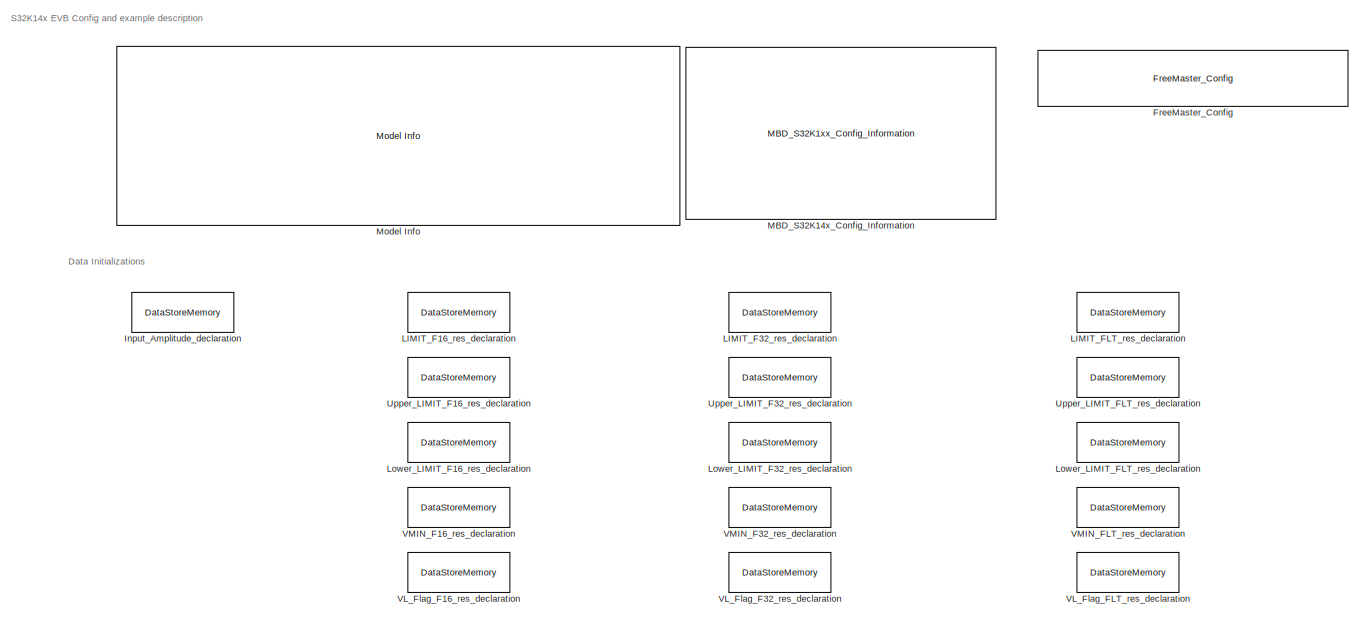
[diagram: root canvas - part 1/7, top center region]
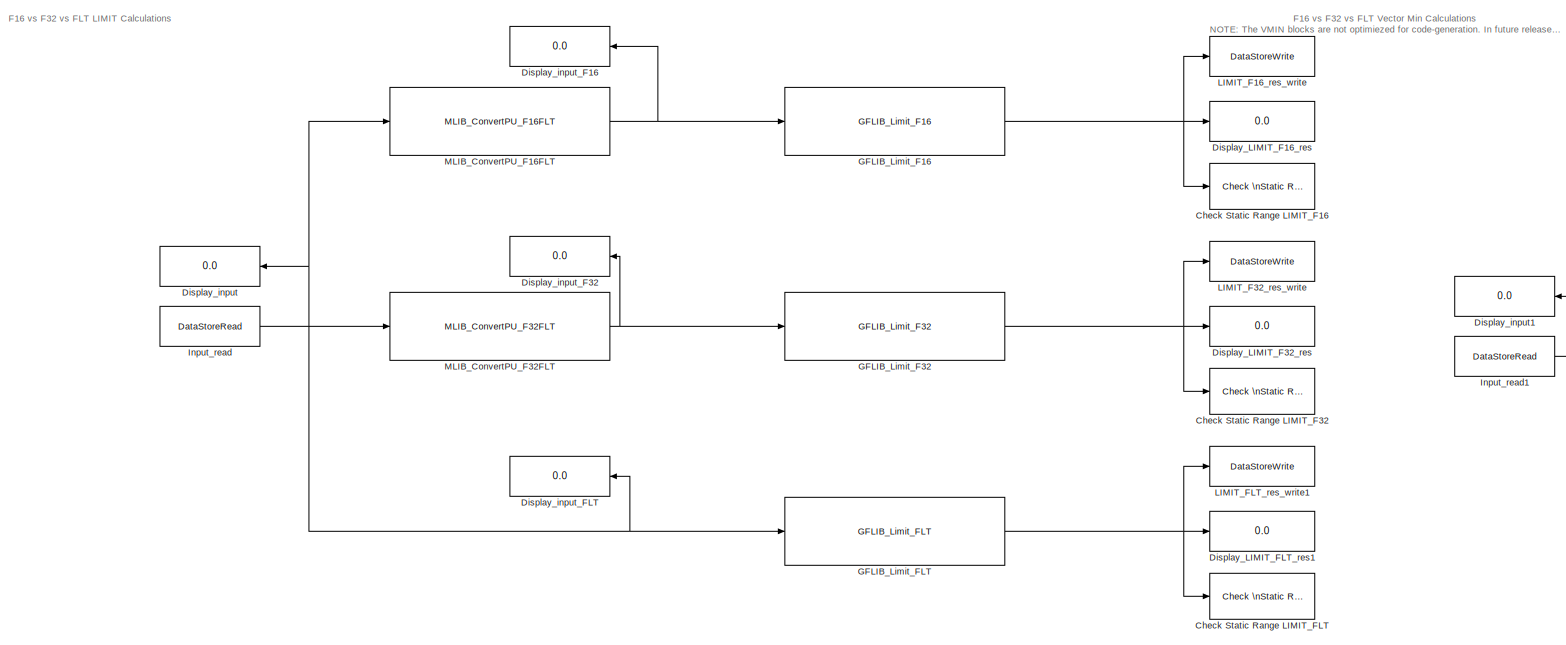
[diagram: root canvas - part 2/7, middle left region]
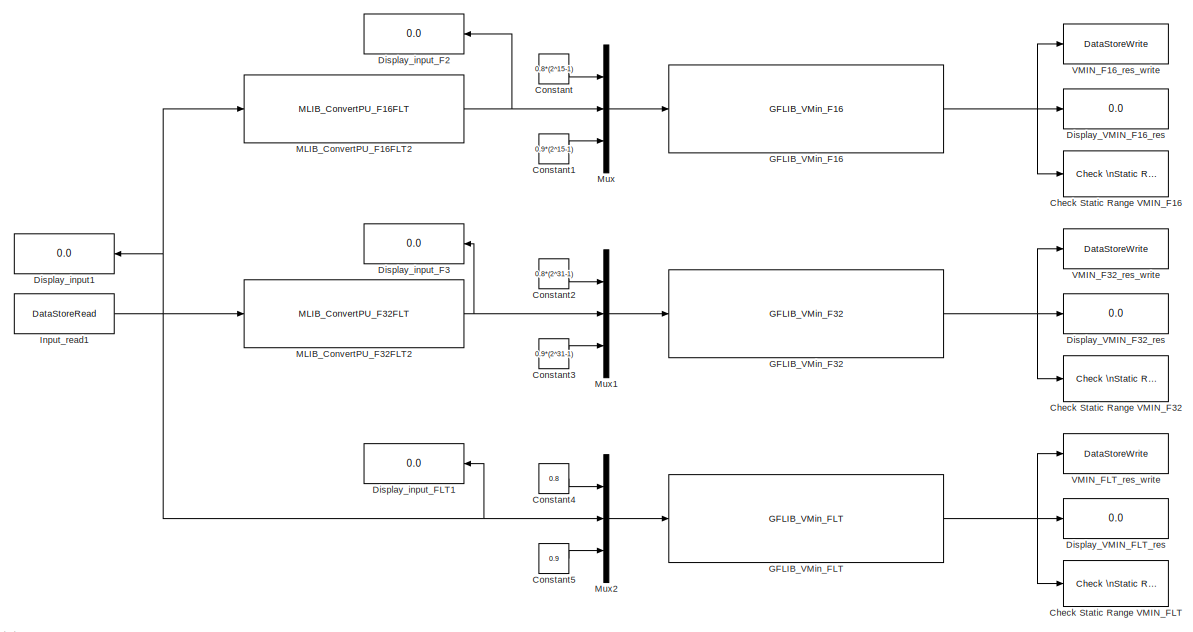
[diagram: root canvas - part 3/7, middle right region]
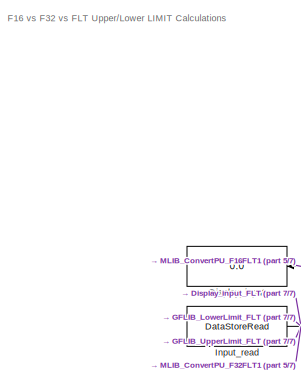
[diagram: root canvas - part 4/7, middle left region]
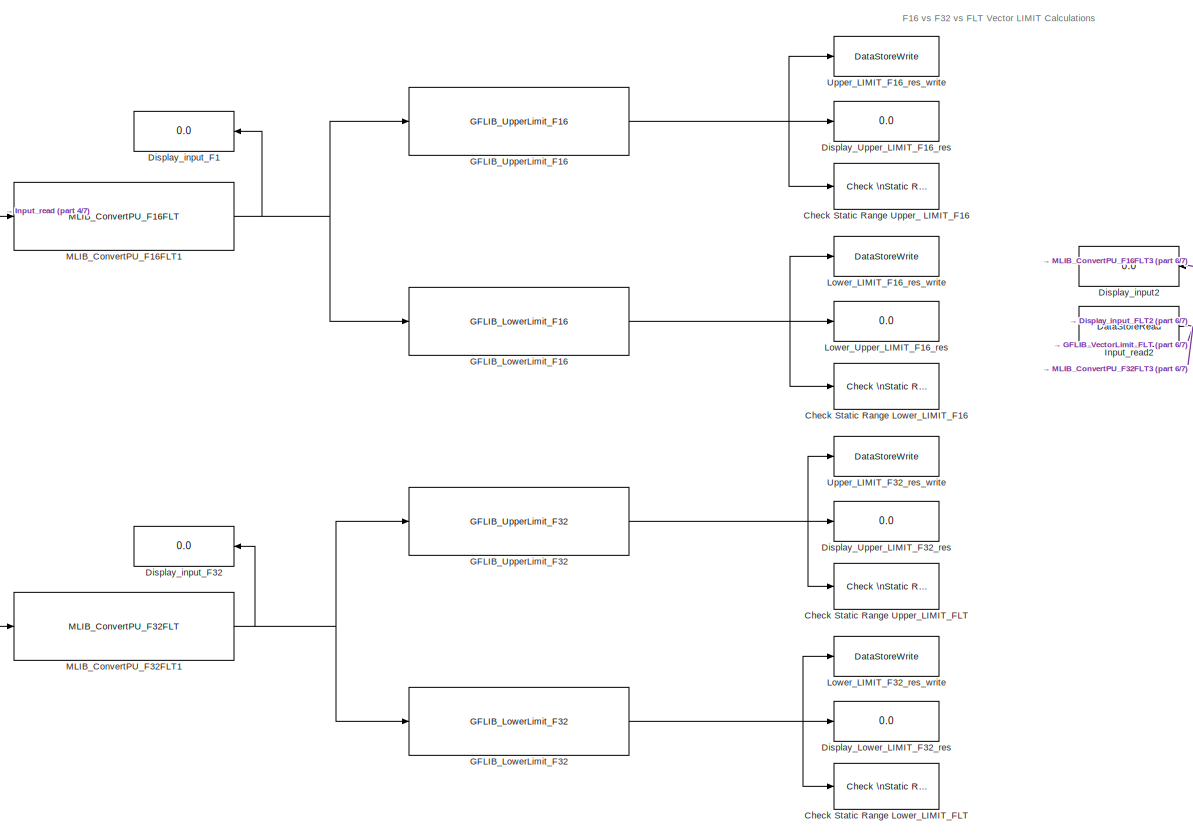
[diagram: root canvas - part 5/7, bottom center region]
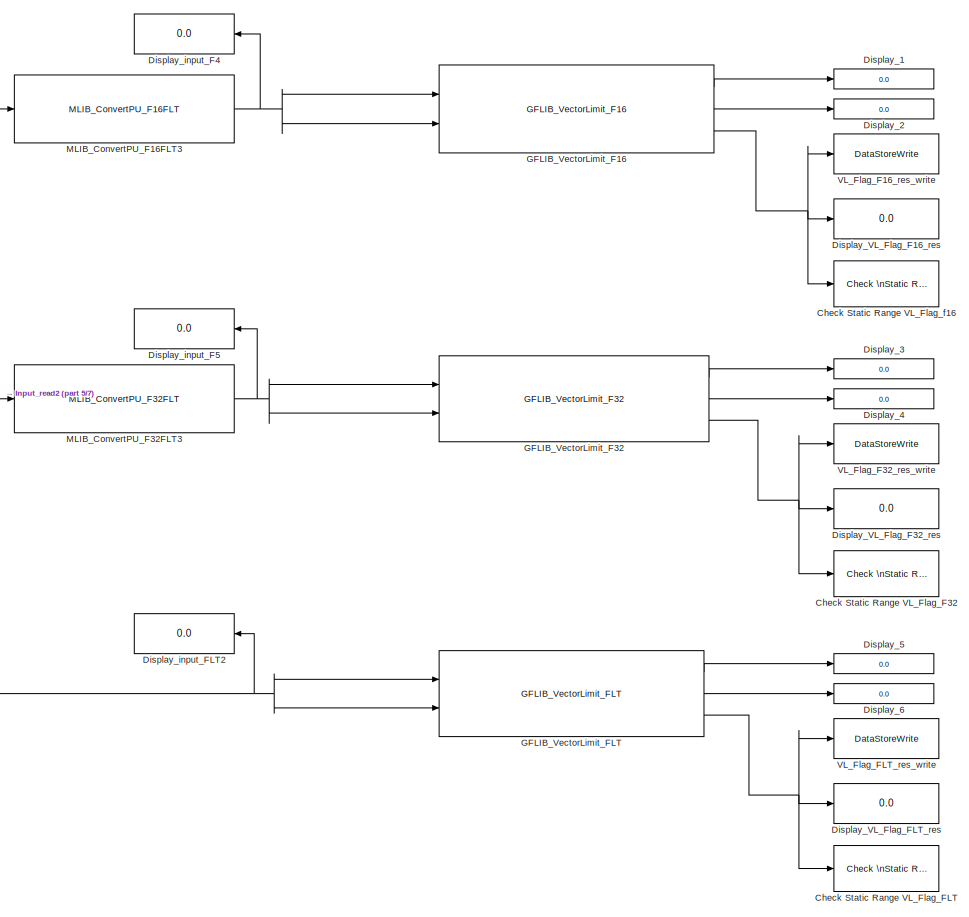
[diagram: root canvas - part 6/7, bottom right region]
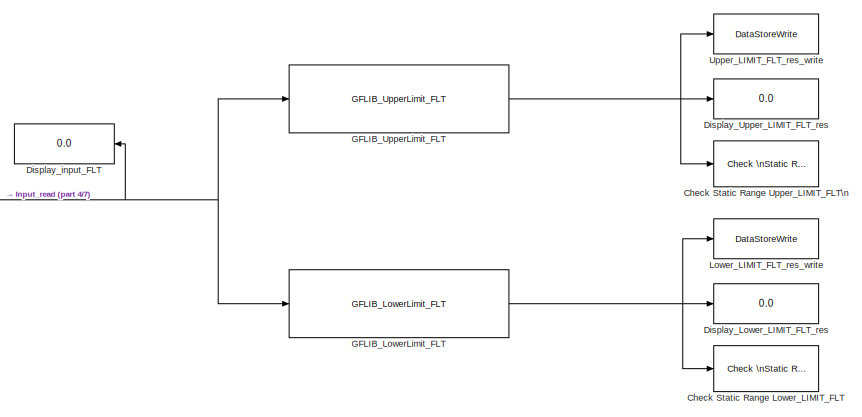
[diagram: root canvas - part 7/7, bottom center region]
MODEL ammclib_gflib_limit_s32k14x
KIND model
CONFIG InitFcn = mbd_s32k_consistency_checks(bdroot(gcs));
BLOCK [Reference] Check Static Range LIMIT_F16   REF=simulink/Model\nVerification/Check \nStatic Range
  Description = -0.5*(2^15-1)-1 <= u <= 0.5*(2^15-1)+1
  Ports = [1]
  SID = 984
  SourceBlock = simulink/Model\nVerification/Check \nStatic Range
  SourceProductBaseCode = SL
  SourceProductName = Simulink
  SourceType = Checks_SRange
  enabled = on
  export = off
  icon = graphic
  max = 0.5*(2^15-1)+1
  max_included = on
  min = -0.5*(2^15-1)-1
  min_included = on
  stopWhenAssertionFail = on
BLOCK [Reference] Check Static Range LIMIT_F32  REF=simulink/Model\nVerification/Check \nStatic Range
  Description = -0.5*(2^31-1)-1 <= u <= 0.5*(2^31-1)+1
  Ports = [1]
  SID = 1001
  SourceBlock = simulink/Model\nVerification/Check \nStatic Range
  SourceProductBaseCode = SL
  SourceProductName = Simulink
  SourceType = Checks_SRange
  enabled = on
  export = off
  icon = graphic
  max = 0.5*(2^31-1)+1
  max_included = on
  min = -0.5*(2^31-1)-1
  min_included = on
  stopWhenAssertionFail = on
BLOCK [Reference] Check Static Range LIMIT_FLT  REF=simulink/Model\nVerification/Check \nStatic Range
  Description = -0.51 <= u <= 0.51
  Ports = [1]
  SID = 1004
  SourceBlock = simulink/Model\nVerification/Check \nStatic Range
  SourceProductBaseCode = SL
  SourceProductName = Simulink
  SourceType = Checks_SRange
  enabled = on
  export = off
  icon = graphic
  max = 0.51
  max_included = on
  min = -0.51
  min_included = on
  stopWhenAssertionFail = on
BLOCK [Reference] Check Static Range Lower_LIMIT_F16  REF=simulink/Model\nVerification/Check \nStatic Range
  Description = -0.5*(2^15-1)-1 <= u <= (2^15-1)
  Ports = [1]
  SID = 1036
  SourceBlock = simulink/Model\nVerification/Check \nStatic Range
  SourceProductBaseCode = SL
  SourceProductName = Simulink
  SourceType = Checks_SRange
  enabled = on
  export = off
  icon = graphic
  max = (2^15-1)
  max_included = on
  min = -0.5*(2^15-1)-1
  min_included = on
  stopWhenAssertionFail = on
BLOCK [Reference] Check Static Range Lower_LIMIT_FLT  REF=simulink/Model\nVerification/Check \nStatic Range
  Description = -0.5*(2^31-1)-1 <= u <= (2^31-1)
  Ports = [1]
  SID = 1041
  SourceBlock = simulink/Model\nVerification/Check \nStatic Range
  SourceProductBaseCode = SL
  SourceProductName = Simulink
  SourceType = Checks_SRange
  enabled = on
  export = off
  icon = graphic
  max = (2^31-1)
  max_included = on
  min = -0.5*(2^31-1)-1
  min_included = on
  stopWhenAssertionFail = on
BLOCK [Reference] Check Static Range Lower_LIMIT_FLT    REF=simulink/Model\nVerification/Check \nStatic Range
  Description = -0.5 <= u <= 1
  Ports = [1]
  SID = 1047
  SourceBlock = simulink/Model\nVerification/Check \nStatic Range
  SourceProductBaseCode = SL
  SourceProductName = Simulink
  SourceType = Checks_SRange
  enabled = on
  export = off
  icon = graphic
  max = 1
  max_included = on
  min = -0.5
  min_included = on
  stopWhenAssertionFail = on
BLOCK [Reference] Check Static Range Upper_ LIMIT_F16   REF=simulink/Model\nVerification/Check \nStatic Range
  Description = -(2^15-1) <= u <= 0.5*(2^15-1)+1
  Ports = [1]
  SID = 1014
  SourceBlock = simulink/Model\nVerification/Check \nStatic Range
  SourceProductBaseCode = SL
  SourceProductName = Simulink
  SourceType = Checks_SRange
  enabled = on
  export = off
  icon = graphic
  max = 0.5*(2^15-1)+1
  max_included = on
  min = -(2^15-1)
  min_included = on
  stopWhenAssertionFail = on
BLOCK [Reference] Check Static Range Upper_LIMIT_FLT  REF=simulink/Model\nVerification/Check \nStatic Range
  Description = -(2^31-1) <= u <= 0.5*(2^31-1)+1
  Ports = [1]
  SID = 1015
  SourceBlock = simulink/Model\nVerification/Check \nStatic Range
  SourceProductBaseCode = SL
  SourceProductName = Simulink
  SourceType = Checks_SRange
  enabled = on
  export = off
  icon = graphic
  max = 0.5*(2^31-1)+1
  max_included = on
  min = -(2^31-1)
  min_included = on
  stopWhenAssertionFail = on
BLOCK [Reference] Check Static Range Upper_LIMIT_FLT\n  REF=simulink/Model\nVerification/Check \nStatic Range
  Description = -1 <= u <= 0.51
  Ports = [1]
  SID = 1016
  SourceBlock = simulink/Model\nVerification/Check \nStatic Range
  SourceProductBaseCode = SL
  SourceProductName = Simulink
  SourceType = Checks_SRange
  enabled = on
  export = off
  icon = graphic
  max = 0.51
  max_included = on
  min = -1
  min_included = on
  stopWhenAssertionFail = on
BLOCK [Reference] Check Static Range VL_Flag_F32  REF=simulink/Model\nVerification/Check \nStatic Range
  Description = 0 <= u <= 1
  Ports = [1]
  SID = 1149
  SourceBlock = simulink/Model\nVerification/Check \nStatic Range
  SourceProductBaseCode = SL
  SourceProductName = Simulink
  SourceType = Checks_SRange
  enabled = on
  export = off
  icon = graphic
  max = 1
  max_included = on
  min = 0
  min_included = on
  stopWhenAssertionFail = on
BLOCK [Reference] Check Static Range VL_Flag_FLT  REF=simulink/Model\nVerification/Check \nStatic Range
  Description = 0 <= u <= 1
  Ports = [1]
  SID = 1155
  SourceBlock = simulink/Model\nVerification/Check \nStatic Range
  SourceProductBaseCode = SL
  SourceProductName = Simulink
  SourceType = Checks_SRange
  enabled = on
  export = off
  icon = graphic
  max = 1
  max_included = on
  min = 0
  min_included = on
  stopWhenAssertionFail = on
BLOCK [Reference] Check Static Range VL_Flag_f16  REF=simulink/Model\nVerification/Check \nStatic Range
  Description = 0 <= u <= 1
  Ports = [1]
  SID = 1145
  SourceBlock = simulink/Model\nVerification/Check \nStatic Range
  SourceProductBaseCode = SL
  SourceProductName = Simulink
  SourceType = Checks_SRange
  enabled = on
  export = off
  icon = graphic
  max = 1
  max_included = on
  min = 0
  min_included = on
  stopWhenAssertionFail = on
BLOCK [Reference] Check Static Range VMIN_F16  REF=simulink/Model\nVerification/Check \nStatic Range
  Description = 0 <= u <= 2
  Ports = [1]
  SID = 1050
  SourceBlock = simulink/Model\nVerification/Check \nStatic Range
  SourceProductBaseCode = SL
  SourceProductName = Simulink
  SourceType = Checks_SRange
  enabled = on
  export = off
  icon = graphic
  max = 2
  max_included = on
  min = 0
  min_included = on
  stopWhenAssertionFail = on
BLOCK [Reference] Check Static Range VMIN_F32  REF=simulink/Model\nVerification/Check \nStatic Range
  Description = 0 <= u <= 2
  Ports = [1]
  SID = 1051
  SourceBlock = simulink/Model\nVerification/Check \nStatic Range
  SourceProductBaseCode = SL
  SourceProductName = Simulink
  SourceType = Checks_SRange
  enabled = on
  export = off
  icon = graphic
  max = 2
  max_included = on
  min = 0
  min_included = on
  stopWhenAssertionFail = on
BLOCK [Reference] Check Static Range VMIN_FLT  REF=simulink/Model\nVerification/Check \nStatic Range
  Description = 0 <= u <= 2
  Ports = [1]
  SID = 1052
  SourceBlock = simulink/Model\nVerification/Check \nStatic Range
  SourceProductBaseCode = SL
  SourceProductName = Simulink
  SourceType = Checks_SRange
  enabled = on
  export = off
  icon = graphic
  max = 2
  max_included = on
  min = 0
  min_included = on
  stopWhenAssertionFail = on
BLOCK [Constant] Constant
  OutDataTypeStr = int16
  SID = 1074
  Value = 0.8*(2^15-1)
BLOCK [Constant] Constant1
  OutDataTypeStr = int16
  SID = 1075
  Value = 0.9*(2^15-1)
BLOCK [Constant] Constant2
  OutDataTypeStr = int32
  SID = 1079
  Value = 0.8*(2^31-1)
BLOCK [Constant] Constant3
  OutDataTypeStr = int32
  SID = 1080
  Value = 0.9*(2^31-1)
BLOCK [Constant] Constant4
  OutDataTypeStr = single
  SID = 1083
  Value = 0.8
BLOCK [Constant] Constant5
  OutDataTypeStr = single
  SID = 1084
  Value = 0.9
BLOCK [Display] Display_1
  Decimation = 1
  Format = long
  Ports = [1]
  SID = 1144
BLOCK [Display] Display_2
  Decimation = 1
  Format = long
  Ports = [1]
  SID = 1139
BLOCK [Display] Display_3
  Decimation = 1
  Format = long
  Ports = [1]
  SID = 1150
BLOCK [Display] Display_4
  Decimation = 1
  Format = long
  Ports = [1]
  SID = 1151
BLOCK [Display] Display_5
  Decimation = 1
  Format = long
  Ports = [1]
  SID = 1156
BLOCK [Display] Display_6
  Decimation = 1
  Format = long
  Ports = [1]
  SID = 1157
BLOCK [Display] Display_LIMIT_F16_res
  Decimation = 1
  Format = long
  Ports = [1]
  SID = 987
BLOCK [Display] Display_LIMIT_F32_res
  Decimation = 1
  Format = long
  Ports = [1]
  SID = 1002
BLOCK [Display] Display_LIMIT_FLT_res1
  Decimation = 1
  Format = long
  Ports = [1]
  SID = 1005
BLOCK [Display] Display_Lower_LIMIT_F32_res
  Decimation = 1
  Format = long
  Ports = [1]
  SID = 1042
BLOCK [Display] Display_Lower_LIMIT_FLT_res
  Decimation = 1
  Format = long
  Ports = [1]
  SID = 1048
BLOCK [Display] Display_Upper_LIMIT_F16_res
  Decimation = 1
  Format = long
  Ports = [1]
  SID = 1017
BLOCK [Display] Display_Upper_LIMIT_F32_res
  Decimation = 1
  Format = long
  Ports = [1]
  SID = 1018
BLOCK [Display] Display_Upper_LIMIT_FLT_res
  Decimation = 1
  Format = long
  Ports = [1]
  SID = 1019
BLOCK [Display] Display_VL_Flag_F16_res
  Decimation = 1
  Format = long
  Ports = [1]
  SID = 1146
BLOCK [Display] Display_VL_Flag_F32_res
  Decimation = 1
  Format = long
  Ports = [1]
  SID = 1152
BLOCK [Display] Display_VL_Flag_FLT_res
  Decimation = 1
  Format = long
  Ports = [1]
  SID = 1158
BLOCK [Display] Display_VMIN_F16_res
  Decimation = 1
  Format = long
  Ports = [1]
  SID = 1053
BLOCK [Display] Display_VMIN_F32_res
  Decimation = 1
  Format = long
  Ports = [1]
  SID = 1054
BLOCK [Display] Display_VMIN_FLT_res
  Decimation = 1
  Format = long
  Ports = [1]
  SID = 1055
BLOCK [Display] Display_input
  Decimation = 1
  Format = long
  Ports = [1]
  SID = 986
BLOCK [Display] Display_input  
  Decimation = 1
  Format = long
  Ports = [1]
  SID = 1020
BLOCK [Display] Display_input1
  Decimation = 1
  Format = long
  Ports = [1]
  SID = 1056
BLOCK [Display] Display_input2
  Decimation = 1
  Format = long
  Ports = [1]
  SID = 1123
BLOCK [Display] Display_input_F1
  Decimation = 1
  Format = long
  Ports = [1]
  SID = 1021
BLOCK [Display] Display_input_F16
  Decimation = 1
  Format = long
  Ports = [1]
  SID = 995
BLOCK [Display] Display_input_F2
  Decimation = 1
  Format = long
  Ports = [1]
  SID = 1057
BLOCK [Display] Display_input_F3
  Decimation = 1
  Format = long
  Ports = [1]
  SID = 1058
BLOCK [Display] Display_input_F32
  Decimation = 1
  Format = long
  Ports = [1]
  SID = 997
BLOCK [Display] Display_input_F32  
  Decimation = 1
  Format = long
  Ports = [1]
  SID = 1022
BLOCK [Display] Display_input_F4
  Decimation = 1
  Format = long
  Ports = [1]
  SID = 1124
BLOCK [Display] Display_input_F5
  Decimation = 1
  Format = long
  Ports = [1]
  SID = 1125
BLOCK [Display] Display_input_FLT
  Decimation = 1
  Format = long
  Ports = [1]
  SID = 1007
BLOCK [Display] Display_input_FLT  
  Decimation = 1
  Format = long
  Ports = [1]
  SID = 1023
BLOCK [Display] Display_input_FLT1
  Decimation = 1
  Format = long
  Ports = [1]
  SID = 1059
BLOCK [Display] Display_input_FLT2
  Decimation = 1
  Format = long
  Ports = [1]
  SID = 1126
BLOCK [Reference] FreeMaster_Config  REF=mbd_s32k1xx_ec_toolbox/Utility Blocks/FreeMaster_Config
  Ports = []
  SID = 564
  SourceBlock = mbd_s32k1xx_ec_toolbox/Utility Blocks/FreeMaster_Config
  SourceType = fm_s32k_config
  baudrate = 115200
  comm_buffer_size = 255
  comm_buffer_size_auto = on
  comm_rqueue_size = 32
  comm_rqueue_size_default = on
  interface = LPUART1
  isr_prio = 1
  max_rec_vars = 8
  max_scope_vars = 8
  mode = Long Interrupt
  rec_buff_size = 1024
  rec_timebase = 0
  rec_timebase_unit = milliseconds
  rxd = PTC6: [LPUART1_RX | Receive]
  show_adv_opts = on
  txd = PTC7: [LPUART1_TX | Transmit]
  use_recorder = off
  use_scope = on
BLOCK [Reference] GFLIB_Limit_F16  REF=ammclib_bam_s32k14x/GFLIB/bam_f16/GFLIB_Limit_F16  (lib defined in mdl_f341c9dd7fd9)
  Ports = [1, 1]
  SID = 994
  SourceBlock = ammclib_bam_s32k14x/GFLIB/bam_f16/GFLIB_Limit_F16
  SourceType = GFLIB_Limit
  f16LowerLim = -0.5*(2^15-1)
  f16UpperLimit = 0.5*(2^15-1)
BLOCK [Reference] GFLIB_Limit_F32  REF=ammclib_bam_s32k14x/GFLIB/bam_f32/GFLIB_Limit_F32  (lib defined in mdl_f341c9dd7fd9)
  Ports = [1, 1]
  SID = 998
  SourceBlock = ammclib_bam_s32k14x/GFLIB/bam_f32/GFLIB_Limit_F32
  SourceType = GFLIB_Limit
  f32LowerLim = -0.5*(2^31-1)
  f32UpperLimit = 0.5*(2^31-1)
BLOCK [Reference] GFLIB_Limit_FLT  REF=ammclib_bam_s32k14x/GFLIB/bam_flt/GFLIB_Limit_FLT  (lib defined in mdl_f341c9dd7fd9)
  Ports = [1, 1]
  SID = 1003
  SourceBlock = ammclib_bam_s32k14x/GFLIB/bam_flt/GFLIB_Limit_FLT
  SourceType = GFLIB_Limit
  fltLowerLim = -0.5
  fltUpperLimit = 0.5
BLOCK [Reference] GFLIB_LowerLimit_F16  REF=ammclib_bam_s32k14x/GFLIB/bam_f16/GFLIB_LowerLimit_F16  (lib defined in mdl_f341c9dd7fd9)
  Ports = [1, 1]
  SID = 1035
  SourceBlock = ammclib_bam_s32k14x/GFLIB/bam_f16/GFLIB_LowerLimit_F16
  SourceType = GFLIB_LowerLimit_F16
  f16LowerLim = -0.5*(2^15-1)
BLOCK [Reference] GFLIB_LowerLimit_F32  REF=ammclib_bam_s32k14x/GFLIB/bam_f32/GFLIB_LowerLimit_F32  (lib defined in mdl_f341c9dd7fd9)
  Ports = [1, 1]
  SID = 1044
  SourceBlock = ammclib_bam_s32k14x/GFLIB/bam_f32/GFLIB_LowerLimit_F32
  SourceType = GFLIB_LowerLimit_F32
  f32LowerLim = -0.5*(2^31-1)
BLOCK [Reference] GFLIB_LowerLimit_FLT  REF=ammclib_bam_s32k14x/GFLIB/bam_flt/GFLIB_LowerLimit_FLT  (lib defined in mdl_f341c9dd7fd9)
  Ports = [1, 1]
  SID = 1046
  SourceBlock = ammclib_bam_s32k14x/GFLIB/bam_flt/GFLIB_LowerLimit_FLT
  SourceType = GFLIB_LowerLimit_FLT
  fltLowerLim = -0.5
BLOCK [Reference] GFLIB_UpperLimit_F16  REF=ammclib_bam_s32k14x/GFLIB/bam_f16/GFLIB_UpperLimit_F16  (lib defined in mdl_f341c9dd7fd9)
  Ports = [1, 1]
  SID = 1034
  SourceBlock = ammclib_bam_s32k14x/GFLIB/bam_f16/GFLIB_UpperLimit_F16
  SourceType = GFLIB_UpperLimit_F16
  f16UpperLim = 0.5*(2^15-1)
BLOCK [Reference] GFLIB_UpperLimit_F32  REF=ammclib_bam_s32k14x/GFLIB/bam_f32/GFLIB_UpperLimit_F32  (lib defined in mdl_f341c9dd7fd9)
  Ports = [1, 1]
  SID = 1039
  SourceBlock = ammclib_bam_s32k14x/GFLIB/bam_f32/GFLIB_UpperLimit_F32
  SourceType = GFLIB_UpperLimit_F32
  f32UpperLim = 0.5*(2^31-1)
BLOCK [Reference] GFLIB_UpperLimit_FLT  REF=ammclib_bam_s32k14x/GFLIB/bam_flt/GFLIB_UpperLimit_FLT  (lib defined in mdl_f341c9dd7fd9)
  Ports = [1, 1]
  SID = 1045
  SourceBlock = ammclib_bam_s32k14x/GFLIB/bam_flt/GFLIB_UpperLimit_FLT
  SourceType = GFLIB_UpperLimit_FLT
  fltUpperLim = 0.5
BLOCK [Reference] GFLIB_VMin_F16  REF=ammclib_bam_s32k14x/GFLIB/bam_f16/GFLIB_VMin_F16  (lib defined in mdl_f341c9dd7fd9)
  N = 3
  Ports = [1, 1]
  SID = 1078
  SourceBlock = ammclib_bam_s32k14x/GFLIB/bam_f16/GFLIB_VMin_F16
  SourceType = GFLIB_VMin_F16
BLOCK [Reference] GFLIB_VMin_F32  REF=ammclib_bam_s32k14x/GFLIB/bam_f32/GFLIB_VMin_F32  (lib defined in mdl_f341c9dd7fd9)
  N = 3
  Ports = [1, 1]
  SID = 1082
  SourceBlock = ammclib_bam_s32k14x/GFLIB/bam_f32/GFLIB_VMin_F32
  SourceType = GFLIB_VMin_F32
BLOCK [Reference] GFLIB_VMin_FLT  REF=ammclib_bam_s32k14x/GFLIB/bam_flt/GFLIB_VMin_FLT  (lib defined in mdl_f341c9dd7fd9)
  N = 3
  Ports = [1, 1]
  SID = 1086
  SourceBlock = ammclib_bam_s32k14x/GFLIB/bam_flt/GFLIB_VMin_FLT
  SourceType = GFLIB_VMin_FLT
BLOCK [Reference] GFLIB_VectorLimit_F16  REF=ammclib_bam_s32k14x/GFLIB/bam_f16/GFLIB_VectorLimit_F16  (lib defined in mdl_f341c9dd7fd9)
  Ports = [2, 3]
  SID = 1137
  SourceBlock = ammclib_bam_s32k14x/GFLIB/bam_f16/GFLIB_VectorLimit_F16
  SourceType = GFLIB_VectorLimit
  f16Limit = 0.5*(2^15-1)
BLOCK [Reference] GFLIB_VectorLimit_F32  REF=ammclib_bam_s32k14x/GFLIB/bam_f32/GFLIB_VectorLimit_F32  (lib defined in mdl_f341c9dd7fd9)
  Ports = [2, 3]
  SID = 1148
  SourceBlock = ammclib_bam_s32k14x/GFLIB/bam_f32/GFLIB_VectorLimit_F32
  SourceType = GFLIB_VectorLimit
  f32Limit = 0.5*(2^31-1)
BLOCK [Reference] GFLIB_VectorLimit_FLT  REF=ammclib_bam_s32k14x/GFLIB/bam_flt/GFLIB_VectorLimit_FLT  (lib defined in mdl_f341c9dd7fd9)
  Ports = [2, 3]
  SID = 1154
  SourceBlock = ammclib_bam_s32k14x/GFLIB/bam_flt/GFLIB_VectorLimit_FLT
  SourceType = GFLIB_VectorLimit
  fltLimit = 0.5
BLOCK [DataStoreMemory] Input_Amplitude_declaration
  DataStoreName = Input
  InitialValue = 0.75
  OutDataTypeStr = single
  OutMax = 1
  OutMin = -1
  Priority = 1
  SID = 582
  ShowAdditionalParam = off
  WriteAfterReadMsg = warning
  WriteAfterWriteMsg = warning
BLOCK [DataStoreRead] Input_read
  DataStoreName = Input
  Ports = [0, 1]
  SID = 982
BLOCK [DataStoreRead] Input_read  
  DataStoreName = Input
  Ports = [0, 1]
  SID = 1027
BLOCK [DataStoreRead] Input_read1
  DataStoreName = Input
  Ports = [0, 1]
  SID = 1063
BLOCK [DataStoreRead] Input_read2
  DataStoreName = Input
  Ports = [0, 1]
  SID = 1130
BLOCK [DataStoreMemory] LIMIT_F16_res_declaration
  DataStoreName = LIMIT_F16
  OutDataTypeStr = int16
  Priority = 2
  ReadBeforeWriteMsg = warning
  SID = 580
  ShowAdditionalParam = off
  WriteAfterReadMsg = warning
  WriteAfterWriteMsg = warning
BLOCK [DataStoreWrite] LIMIT_F16_res_write
  DataStoreName = LIMIT_F16
  Ports = [1]
  SID = 981
BLOCK [DataStoreMemory] LIMIT_F32_res_declaration
  DataStoreName = LIMIT_F32
  OutDataTypeStr = int32
  Priority = 2
  ReadBeforeWriteMsg = warning
  SID = 610
  ShowAdditionalParam = off
  WriteAfterReadMsg = warning
  WriteAfterWriteMsg = warning
BLOCK [DataStoreWrite] LIMIT_F32_res_write
  DataStoreName = LIMIT_F32
  Ports = [1]
  SID = 1000
BLOCK [DataStoreMemory] LIMIT_FLT_res_declaration
  DataStoreName = LIMIT_FLT
  OutDataTypeStr = single
  Priority = 2
  ReadBeforeWriteMsg = warning
  SID = 630
  ShowAdditionalParam = off
  WriteAfterReadMsg = warning
  WriteAfterWriteMsg = warning
BLOCK [DataStoreWrite] LIMIT_FLT_res_write1
  DataStoreName = LIMIT_FLT
  Ports = [1]
  SID = 1006
BLOCK [DataStoreMemory] Lower_LIMIT_F16_res_declaration
  DataStoreName = Lower_LIMIT_F16
  OutDataTypeStr = int16
  Priority = 2
  ReadBeforeWriteMsg = warning
  SID = 1011
  ShowAdditionalParam = off
  WriteAfterReadMsg = warning
  WriteAfterWriteMsg = warning
BLOCK [DataStoreWrite] Lower_LIMIT_F16_res_write
  DataStoreName = Lower_LIMIT_F16
  Ports = [1]
  SID = 1038
BLOCK [DataStoreMemory] Lower_LIMIT_F32_res_declaration
  DataStoreName = Lower_LIMIT_F32
  OutDataTypeStr = int32
  Priority = 2
  ReadBeforeWriteMsg = warning
  SID = 1012
  ShowAdditionalParam = off
  WriteAfterReadMsg = warning
  WriteAfterWriteMsg = warning
BLOCK [DataStoreWrite] Lower_LIMIT_F32_res_write
  DataStoreName = Lower_LIMIT_F32
  Ports = [1]
  SID = 1043
BLOCK [DataStoreMemory] Lower_LIMIT_FLT_res_declaration
  DataStoreName = Lower_LIMIT_FLT
  OutDataTypeStr = single
  Priority = 2
  ReadBeforeWriteMsg = warning
  SID = 1013
  ShowAdditionalParam = off
  WriteAfterReadMsg = warning
  WriteAfterWriteMsg = warning
BLOCK [DataStoreWrite] Lower_LIMIT_FLT_res_write
  DataStoreName = Lower_LIMIT_FLT
  Ports = [1]
  SID = 1049
BLOCK [Display] Lower_Upper_LIMIT_F16_res
  Decimation = 1
  Format = long
  Ports = [1]
  SID = 1037
BLOCK [Reference] MBD_S32K14x_Config_Information  REF=mbd_s32k1xx_ec_toolbox/MBD_S32K1xx_Config_Information
  ADC_PcrCheckEnDis = on
  AMMCLIB_PcrCheckEnDis = on
  CMP_PcrCheckEnDis = on
  CSEc_PcrCheckEnDis = on
  ConfigParams_PcrCheckEnDis = on
  FM_PcrCheckEnDis = on
  FTM_Dual_Edge_Inputs_PcrCheckEnDis = on
  FTM_Hall_Sensor_Inputs_PcrCheckEnDis = on
  FTM_Input_Edge_Inputs_PcrCheckEnDis = on
  FTM_PWM_PcrCheckEnDis = on
  FTM_Quadrature_Inputs_PcrCheckEnDis = on
  FlexCAN_PcrCheckEnDis = on
  FlexIO_PcrCheckEnDis = on
  GPIO_InputPcrCheckEnDis = on
  GPIO_OutputPcrCheckEnDis = on
  LIN_PcrCheckEnDis = on
  LPI2C_PcrCheckEnDis = on
  LPSPI_PcrCheckEnDis = on
  LPTMR_PcrCheckEnDis = on
  LPUART_PcrCheckEnDis = on
  ModelRef_PcrCheckEnDis = on
  PDB0_PcrCheckEnDis = on
  PIT_PcrCheckEnDis = on
  Ports = []
  Priority = 0
  Profile_PcrCheckEnDis = on
  RTC_PcrCheckEnDis = on
  SBC_PcrCheckEnDis = on
  SID = 1
  SourceBlock = mbd_s32k1xx_ec_toolbox/MBD_S32K1xx_Config_Information
  SourceType = MBDTBX_EC_S32K
  WDOG_PcrCheckEnDis = on
  config_params = []
  disp_str = Target : S32K142-16KB_SRAM\nPackage : 100-pin\nSystem clock : 80 MHz\nXTAL clock : External 8 MHz\nCompiler : GCC\nTarget Type : FLASH\nDownload Code after build : (OpenSDA: E)\nStep Tick Interrupt Priority : 15
  ds_import_enable = on
  eDMA_PcrCheckEnDis = on
  gcc_target_assemble_opts = -mcpu=cortex-m4 -mthumb -mfloat-abi=hard -mfpu=fpv4-sp-d16 -g
  gcc_target_compile_opts = -mcpu=cortex-m4 -mthumb -mfloat-abi=hard -mfpu=fpv4-sp-d16 -O1 -g -gstrict-dwarf
  gcc_target_default_lcf = on
  gcc_target_link_opts = -mcpu=cortex-m4 -mthumb -mfloat-abi=hard -mfpu=fpv4-sp-d16
  gcc_target_user_lcf = S32K144_64_flash.ld
  ghs_target_assemble_opts = -cpu=cortexm4f -fpu=vfpv4_d16
  ghs_target_compile_opts = -cpu=cortexm4f -thumb -DARM_MATH_CM4 -fpu=vfpv4_d16 -fsingle -Ogeneral -Wundef -Wimplicit-int -Wshadow -Wtrigraphs --no_commons --gnu_asm -gnu99 -gdwarf-2 -G
  ghs_target_default_lcf = off
  ghs_target_link_opts = -cpu=cortexm4f -thumb -fpu=vfpv4_d16
  ghs_target_user_lcf = S32K144_64_flash.ld
  iar_target_assemble_opts = --cpu Cortex-M4F --thumb --fpu VFPv4_sp
  iar_target_compile_opts = --cpu=Cortex-M4F --thumb --fpu=VFPv4_sp -Ol -e --debug --dlib_config normal
  iar_target_default_lcf = off
  iar_target_link_opts = --no_exceptions --vfe --inline
  iar_target_user_lcf = S32K144_64_flash.icf
  mbdt_ver = 0
  mcu_steptick_prio = 15
  mcu_steptick_timer = LPIT Channel 0
  mcu_system_clock_freq = 80
  mcu_target_name = S32K144
  mcu_target_package = 100-LQFP
  mcu_target_sram_size = 64KB
  mcu_xtal_freq = External 8
  pil_download_enable = off
  pil_download_rate = 57600
  pil_opensda_drive = Custom
  pil_opensda_drive_custom = D
  pil_uart_instance = 0
  pil_uart_rx = PTA2: [LPUART0_RX | Receive]
  pil_uart_tx = PTA3: [LPUART0_TX | Transmit]
  rbl_com_port = Custom
  rbl_com_port_custom = COM1
  rbl_download_enable = on
  rbl_download_interface = OpenSDA
  rbl_restart_request = off
  rbl_start_delay = 5000000
  target_compiler = GCC
  target_memory = FLASH
BLOCK [Reference] MLIB_ConvertPU_F16FLT  REF=ammclib_bam_s32k14x/MLIB/bam_f16/MLIB_ConvertPU_F16FLT  (lib defined in mdl_f341c9dd7fd9)
  Ports = [1, 1]
  SID = 990
  SourceBlock = ammclib_bam_s32k14x/MLIB/bam_f16/MLIB_ConvertPU_F16FLT
  SourceType = MLIB_ConvertPU_F16
BLOCK [Reference] MLIB_ConvertPU_F16FLT1  REF=ammclib_bam_s32k14x/MLIB/bam_f16/MLIB_ConvertPU_F16FLT  (lib defined in mdl_f341c9dd7fd9)
  Ports = [1, 1]
  SID = 1031
  SourceBlock = ammclib_bam_s32k14x/MLIB/bam_f16/MLIB_ConvertPU_F16FLT
  SourceType = MLIB_ConvertPU_F16
BLOCK [Reference] MLIB_ConvertPU_F16FLT2  REF=ammclib_bam_s32k14x/MLIB/bam_f16/MLIB_ConvertPU_F16FLT  (lib defined in mdl_f341c9dd7fd9)
  Ports = [1, 1]
  SID = 1067
  SourceBlock = ammclib_bam_s32k14x/MLIB/bam_f16/MLIB_ConvertPU_F16FLT
  SourceType = MLIB_ConvertPU_F16
BLOCK [Reference] MLIB_ConvertPU_F16FLT3  REF=ammclib_bam_s32k14x/MLIB/bam_f16/MLIB_ConvertPU_F16FLT  (lib defined in mdl_f341c9dd7fd9)
  Ports = [1, 1]
  SID = 1134
  SourceBlock = ammclib_bam_s32k14x/MLIB/bam_f16/MLIB_ConvertPU_F16FLT
  SourceType = MLIB_ConvertPU_F16
BLOCK [Reference] MLIB_ConvertPU_F32FLT  REF=ammclib_bam_s32k14x/MLIB/bam_f32/MLIB_ConvertPU_F32FLT  (lib defined in mdl_f341c9dd7fd9)
  Ports = [1, 1]
  SID = 996
  SourceBlock = ammclib_bam_s32k14x/MLIB/bam_f32/MLIB_ConvertPU_F32FLT
  SourceType = MLIB_ConvertPU_F32
BLOCK [Reference] MLIB_ConvertPU_F32FLT1  REF=ammclib_bam_s32k14x/MLIB/bam_f32/MLIB_ConvertPU_F32FLT  (lib defined in mdl_f341c9dd7fd9)
  Ports = [1, 1]
  SID = 1032
  SourceBlock = ammclib_bam_s32k14x/MLIB/bam_f32/MLIB_ConvertPU_F32FLT
  SourceType = MLIB_ConvertPU_F32
BLOCK [Reference] MLIB_ConvertPU_F32FLT2  REF=ammclib_bam_s32k14x/MLIB/bam_f32/MLIB_ConvertPU_F32FLT  (lib defined in mdl_f341c9dd7fd9)
  Ports = [1, 1]
  SID = 1068
  SourceBlock = ammclib_bam_s32k14x/MLIB/bam_f32/MLIB_ConvertPU_F32FLT
  SourceType = MLIB_ConvertPU_F32
BLOCK [Reference] MLIB_ConvertPU_F32FLT3  REF=ammclib_bam_s32k14x/MLIB/bam_f32/MLIB_ConvertPU_F32FLT  (lib defined in mdl_f341c9dd7fd9)
  Ports = [1, 1]
  SID = 1135
  SourceBlock = ammclib_bam_s32k14x/MLIB/bam_f32/MLIB_ConvertPU_F32FLT
  SourceType = MLIB_ConvertPU_F32
BLOCK [Reference] Model Info  REF=simulink/Model-Wide\nUtilities/Model Info
  DisplayStringWithTags = Model Name: %<ModelName>\n\nDescription: %<Description>
  Frame = off
  HorizontalTextAlignment = Left
  LeftAlignmentValue = 0.02
  MaskDisplayString = Model Name: ammclib_gflib_limit_s32k14x\\n\\nDescription: This model tests the AMMCLIB GFLIB LIMIT blocks\\n\\nValidation:\\n- Run the model in Simulation and check the results\\n- Open Freemaster (ammclib_gflib_limit_s32k14x.pmp) and compare the HW results against the Simulated ones
  Ports = []
  SID = 524
  SourceBlock = simulink/Model-Wide\nUtilities/Model Info
  SourceProductBaseCode = SL
  SourceProductName = Simulink
  SourceType = CMBlock
BLOCK [Mux] Mux
  DisplayOption = bar
  Inputs = 3
  Ports = [3, 1]
  SID = 1073
BLOCK [Mux] Mux1
  DisplayOption = bar
  Inputs = 3
  Ports = [3, 1]
  SID = 1081
BLOCK [Mux] Mux2
  DisplayOption = bar
  Inputs = 3
  Ports = [3, 1]
  SID = 1085
BLOCK [DataStoreMemory] Upper_LIMIT_F16_res_declaration
  DataStoreName = Upper_LIMIT_F16
  OutDataTypeStr = int16
  Priority = 2
  ReadBeforeWriteMsg = warning
  SID = 1008
  ShowAdditionalParam = off
  WriteAfterReadMsg = warning
  WriteAfterWriteMsg = warning
BLOCK [DataStoreWrite] Upper_LIMIT_F16_res_write
  DataStoreName = Upper_LIMIT_F16
  Ports = [1]
  SID = 1030
BLOCK [DataStoreMemory] Upper_LIMIT_F32_res_declaration
  DataStoreName = Upper_LIMIT_F32
  OutDataTypeStr = int32
  Priority = 2
  ReadBeforeWriteMsg = warning
  SID = 1009
  ShowAdditionalParam = off
  WriteAfterReadMsg = warning
  WriteAfterWriteMsg = warning
BLOCK [DataStoreWrite] Upper_LIMIT_F32_res_write
  DataStoreName = Upper_LIMIT_F32
  Ports = [1]
  SID = 1028
BLOCK [DataStoreMemory] Upper_LIMIT_FLT_res_declaration
  DataStoreName = Upper_LIMIT_FLT
  OutDataTypeStr = single
  Priority = 2
  ReadBeforeWriteMsg = warning
  SID = 1010
  ShowAdditionalParam = off
  WriteAfterReadMsg = warning
  WriteAfterWriteMsg = warning
BLOCK [DataStoreWrite] Upper_LIMIT_FLT_res_write
  DataStoreName = Upper_LIMIT_FLT
  Ports = [1]
  SID = 1029
BLOCK [DataStoreMemory] VL_Flag_F16_res_declaration
  DataStoreName = VL_Flag_F16
  OutDataTypeStr = boolean
  Priority = 2
  ReadBeforeWriteMsg = warning
  SID = 1141
  ShowAdditionalParam = off
  WriteAfterReadMsg = warning
  WriteAfterWriteMsg = warning
BLOCK [DataStoreWrite] VL_Flag_F16_res_write
  DataStoreName = VL_Flag_F16
  Ports = [1]
  SID = 1147
BLOCK [DataStoreMemory] VL_Flag_F32_res_declaration
  DataStoreName = VL_Flag_F32
  OutDataTypeStr = boolean
  Priority = 2
  ReadBeforeWriteMsg = warning
  SID = 1142
  ShowAdditionalParam = off
  WriteAfterReadMsg = warning
  WriteAfterWriteMsg = warning
BLOCK [DataStoreWrite] VL_Flag_F32_res_write
  DataStoreName = VL_Flag_F32
  Ports = [1]
  SID = 1153
BLOCK [DataStoreMemory] VL_Flag_FLT_res_declaration
  DataStoreName = VL_Flag_FLT
  OutDataTypeStr = boolean
  Priority = 2
  ReadBeforeWriteMsg = warning
  SID = 1143
  ShowAdditionalParam = off
  WriteAfterReadMsg = warning
  WriteAfterWriteMsg = warning
BLOCK [DataStoreWrite] VL_Flag_FLT_res_write
  DataStoreName = VL_Flag_FLT
  Ports = [1]
  SID = 1159
BLOCK [DataStoreMemory] VMIN_F16_res_declaration
  DataStoreName = VMIN_F16
  OutDataTypeStr = uint16
  Priority = 2
  ReadBeforeWriteMsg = warning
  SID = 1070
  ShowAdditionalParam = off
  WriteAfterReadMsg = warning
  WriteAfterWriteMsg = warning
BLOCK [DataStoreWrite] VMIN_F16_res_write
  DataStoreName = VMIN_F16
  Ports = [1]
  SID = 1065
BLOCK [DataStoreMemory] VMIN_F32_res_declaration
  DataStoreName = VMIN_F32
  OutDataTypeStr = uint32
  Priority = 2
  ReadBeforeWriteMsg = warning
  SID = 1071
  ShowAdditionalParam = off
  WriteAfterReadMsg = warning
  WriteAfterWriteMsg = warning
BLOCK [DataStoreWrite] VMIN_F32_res_write
  DataStoreName = VMIN_F32
  Ports = [1]
  SID = 1064
BLOCK [DataStoreMemory] VMIN_FLT_res_declaration
  DataStoreName = VMIN_FLT
  OutDataTypeStr = uint32
  Priority = 2
  ReadBeforeWriteMsg = warning
  SID = 1072
  ShowAdditionalParam = off
  WriteAfterReadMsg = warning
  WriteAfterWriteMsg = warning
BLOCK [DataStoreWrite] VMIN_FLT_res_write
  DataStoreName = VMIN_FLT
  Ports = [1]
  SID = 1066
ANNOTATION (root): Data Initializations
ANNOTATION (root): F16 vs F32 vs FLT LIMIT Calculations
ANNOTATION (root): F16 vs F32 vs FLT Upper/Lower LIMIT Calculations
ANNOTATION (root): F16 vs F32 vs FLT Vector LIMIT Calculations
ANNOTATION (root): F16 vs F32 vs FLT Vector Min Calculations\nNOTE: The VMIN blocks are not optimiezed for code-generation. In future releases of the AMMCLIB the implementation will be changed\n
ANNOTATION (root): S32K14x EVB Config and example description
LINE Constant1:1 -> Mux:3
LINE Constant2:1 -> Mux1:1
LINE Constant3:1 -> Mux1:3
LINE Constant4:1 -> Mux2:1
LINE Constant5:1 -> Mux2:3
LINE Constant:1 -> Mux:1
NET GFLIB_Limit_F16:1 -> Check Static Range LIMIT_F16 :1, Display_LIMIT_F16_res:1, LIMIT_F16_res_write:1
NET GFLIB_Limit_F32:1 -> Check Static Range LIMIT_F32:1, Display_LIMIT_F32_res:1, LIMIT_F32_res_write:1
NET GFLIB_Limit_FLT:1 -> Check Static Range LIMIT_FLT:1, Display_LIMIT_FLT_res1:1, LIMIT_FLT_res_write1:1
NET GFLIB_LowerLimit_F16:1 -> Check Static Range Lower_LIMIT_F16:1, Lower_LIMIT_F16_res_write:1, Lower_Upper_LIMIT_F16_res:1
NET GFLIB_LowerLimit_F32:1 -> Check Static Range Lower_LIMIT_FLT:1, Display_Lower_LIMIT_F32_res:1, Lower_LIMIT_F32_res_write:1
NET GFLIB_LowerLimit_FLT:1 -> Check Static Range Lower_LIMIT_FLT  :1, Display_Lower_LIMIT_FLT_res:1, Lower_LIMIT_FLT_res_write:1
NET GFLIB_UpperLimit_F16:1 -> Check Static Range Upper_ LIMIT_F16 :1, Display_Upper_LIMIT_F16_res:1, Upper_LIMIT_F16_res_write:1
NET GFLIB_UpperLimit_F32:1 -> Check Static Range Upper_LIMIT_FLT:1, Display_Upper_LIMIT_F32_res:1, Upper_LIMIT_F32_res_write:1
NET GFLIB_UpperLimit_FLT:1 -> Check Static Range Upper_LIMIT_FLT\n:1, Display_Upper_LIMIT_FLT_res:1, Upper_LIMIT_FLT_res_write:1
NET GFLIB_VMin_F16:1 -> Check Static Range VMIN_F16:1, Display_VMIN_F16_res:1, VMIN_F16_res_write:1
NET GFLIB_VMin_F32:1 -> Check Static Range VMIN_F32:1, Display_VMIN_F32_res:1, VMIN_F32_res_write:1
NET GFLIB_VMin_FLT:1 -> Check Static Range VMIN_FLT:1, Display_VMIN_FLT_res:1, VMIN_FLT_res_write:1
LINE GFLIB_VectorLimit_F16:1 -> Display_1:1
LINE GFLIB_VectorLimit_F16:2 -> Display_2:1
NET GFLIB_VectorLimit_F16:3 -> Check Static Range VL_Flag_f16:1, Display_VL_Flag_F16_res:1, VL_Flag_F16_res_write:1
LINE GFLIB_VectorLimit_F32:1 -> Display_3:1
LINE GFLIB_VectorLimit_F32:2 -> Display_4:1
NET GFLIB_VectorLimit_F32:3 -> Check Static Range VL_Flag_F32:1, Display_VL_Flag_F32_res:1, VL_Flag_F32_res_write:1
LINE GFLIB_VectorLimit_FLT:1 -> Display_5:1
LINE GFLIB_VectorLimit_FLT:2 -> Display_6:1
NET GFLIB_VectorLimit_FLT:3 -> Check Static Range VL_Flag_FLT:1, Display_VL_Flag_FLT_res:1, VL_Flag_FLT_res_write:1
NET Input_read  :1 -> Display_input  :1, Display_input_FLT  :1, GFLIB_LowerLimit_FLT:1, GFLIB_UpperLimit_FLT:1, MLIB_ConvertPU_F16FLT1:1, MLIB_ConvertPU_F32FLT1:1
NET Input_read1:1 -> Display_input1:1, Display_input_FLT1:1, MLIB_ConvertPU_F16FLT2:1, MLIB_ConvertPU_F32FLT2:1, Mux2:2
NET Input_read2:1 -> Display_input2:1, Display_input_FLT2:1, GFLIB_VectorLimit_FLT:1, GFLIB_VectorLimit_FLT:2, MLIB_ConvertPU_F16FLT3:1, MLIB_ConvertPU_F32FLT3:1
NET Input_read:1 -> Display_input:1, Display_input_FLT:1, GFLIB_Limit_FLT:1, MLIB_ConvertPU_F16FLT:1, MLIB_ConvertPU_F32FLT:1
NET MLIB_ConvertPU_F16FLT1:1 -> Display_input_F1:1, GFLIB_LowerLimit_F16:1, GFLIB_UpperLimit_F16:1
NET MLIB_ConvertPU_F16FLT2:1 -> Display_input_F2:1, Mux:2
NET MLIB_ConvertPU_F16FLT3:1 -> Display_input_F4:1, GFLIB_VectorLimit_F16:1, GFLIB_VectorLimit_F16:2
NET MLIB_ConvertPU_F16FLT:1 -> Display_input_F16:1, GFLIB_Limit_F16:1
NET MLIB_ConvertPU_F32FLT1:1 -> Display_input_F32  :1, GFLIB_LowerLimit_F32:1, GFLIB_UpperLimit_F32:1
NET MLIB_ConvertPU_F32FLT2:1 -> Display_input_F3:1, Mux1:2
NET MLIB_ConvertPU_F32FLT3:1 -> Display_input_F5:1, GFLIB_VectorLimit_F32:1, GFLIB_VectorLimit_F32:2
NET MLIB_ConvertPU_F32FLT:1 -> Display_input_F32:1, GFLIB_Limit_F32:1
LINE Mux1:1 -> GFLIB_VMin_F32:1
LINE Mux2:1 -> GFLIB_VMin_FLT:1
LINE Mux:1 -> GFLIB_VMin_F16:1
note: NET lines group one-source signal fan-out (src -> all destinations, sorted); 1:1 wires keep LINE
